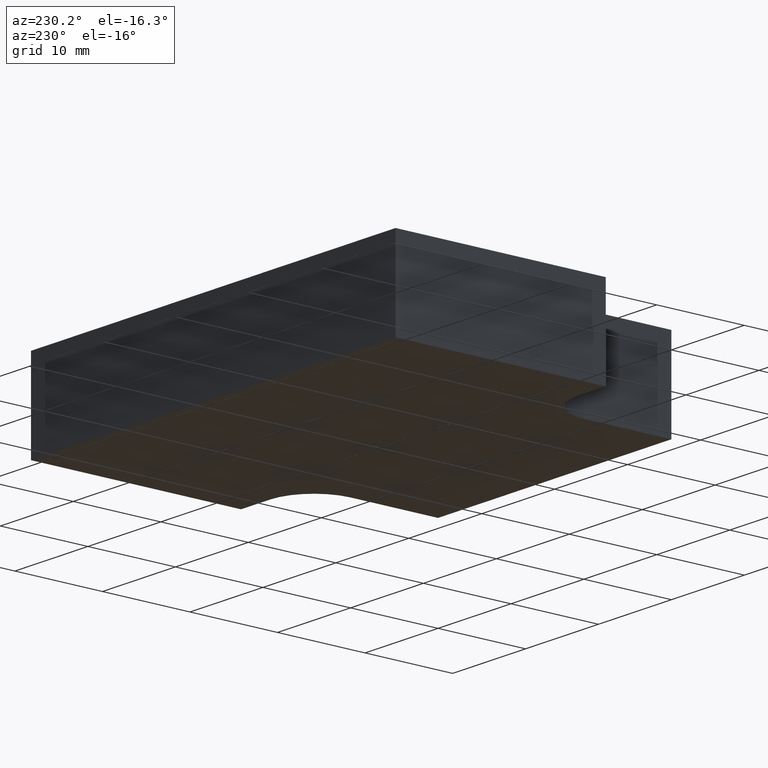
[diagram: clean part render]
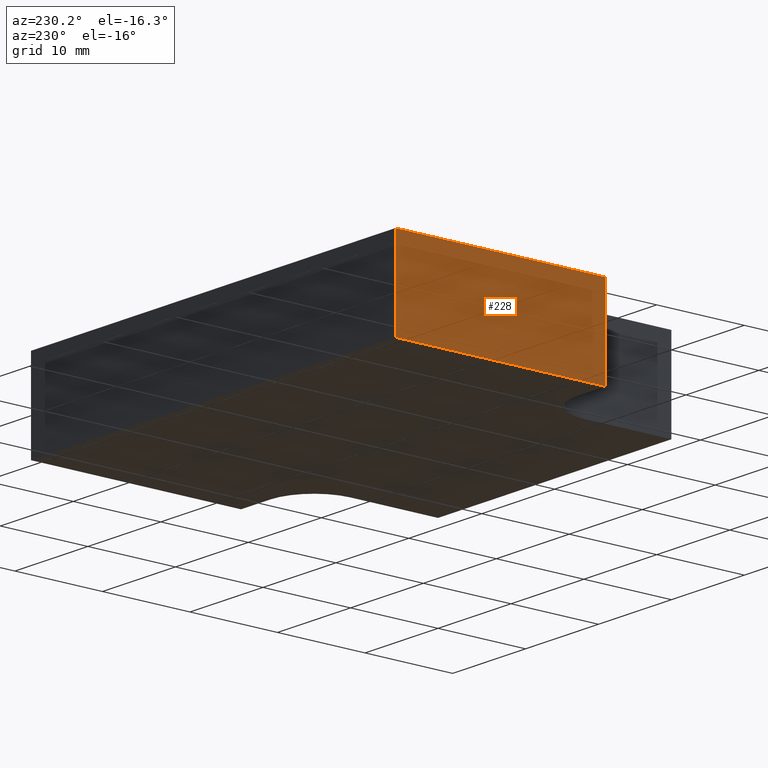
[diagram: same view with one face highlighted and labeled with its STEP entity id]
A machine part, auxiliary view. The second image highlights one B-rep face of the part: STEP entity #228.
In plain terms, the highlighted planar face has unit normal (-1, 0, 0).
Its self-contained STEP definition (entity closure, byte-faithful):
#28=FACE_OUTER_BOUND('',#40,.T.);
#40=EDGE_LOOP('',(#194,#195,#196,#197));
#46=LINE('',#333,#72);
#56=LINE('',#356,#82);
#70=LINE('',#388,#96);
#71=LINE('',#390,#97);
#72=VECTOR('',#273,10.);
#82=VECTOR('',#289,10.);
#96=VECTOR('',#323,10.);
#97=VECTOR('',#326,10.);
#98=VERTEX_POINT('',#331);
#99=VERTEX_POINT('',#332);
#108=VERTEX_POINT('',#352);
#117=VERTEX_POINT('',#386);
#118=EDGE_CURVE('',#98,#99,#46,.T.);
#130=EDGE_CURVE('',#98,#108,#56,.T.);
#146=EDGE_CURVE('',#117,#99,#70,.T.);
#147=EDGE_CURVE('',#117,#108,#71,.T.);
#194=ORIENTED_EDGE('',*,*,#147,.T.);
#195=ORIENTED_EDGE('',*,*,#130,.F.);
#196=ORIENTED_EDGE('',*,*,#118,.T.);
#197=ORIENTED_EDGE('',*,*,#146,.F.);
#216=PLANE('',#267);
#228=ADVANCED_FACE('',(#28),#216,.T.);
#267=AXIS2_PLACEMENT_3D('',#389,#324,#325);
#273=DIRECTION('',(0.,-1.,0.));
#289=DIRECTION('',(0.,0.,1.));
#323=DIRECTION('',(0.,0.,-1.));
#324=DIRECTION('center_axis',(-1.,0.,0.));
#325=DIRECTION('ref_axis',(0.,0.,1.));
#326=DIRECTION('',(0.,1.,0.));
#331=CARTESIAN_POINT('',(-25.,39.,-5.));
#332=CARTESIAN_POINT('',(-25.,15.,-5.));
#333=CARTESIAN_POINT('',(-25.,15.,-5.));
#352=CARTESIAN_POINT('',(-25.,39.,5.));
#356=CARTESIAN_POINT('',(-25.,39.,0.));
#386=CARTESIAN_POINT('',(-25.,15.,5.));
#388=CARTESIAN_POINT('',(-25.,15.,0.));
#389=CARTESIAN_POINT('Origin',(-25.,15.,0.));
#390=CARTESIAN_POINT('',(-25.,15.,5.));